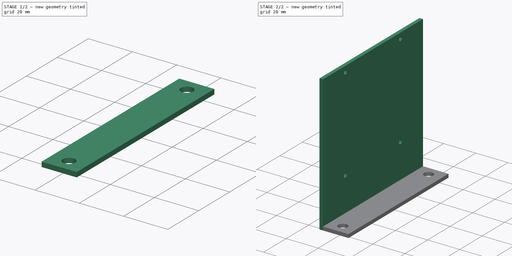
[diagram: build sequence overview — one tinted view per stage of 2, left to right]
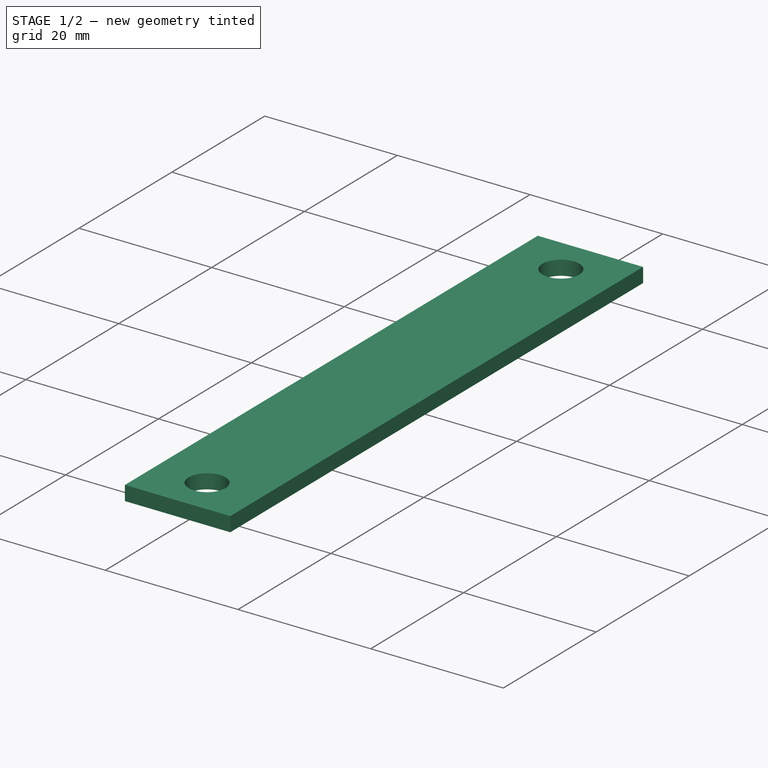
[diagram: stage 1 of 2 — iso view after this stage's code; geometry added in this stage tinted green]
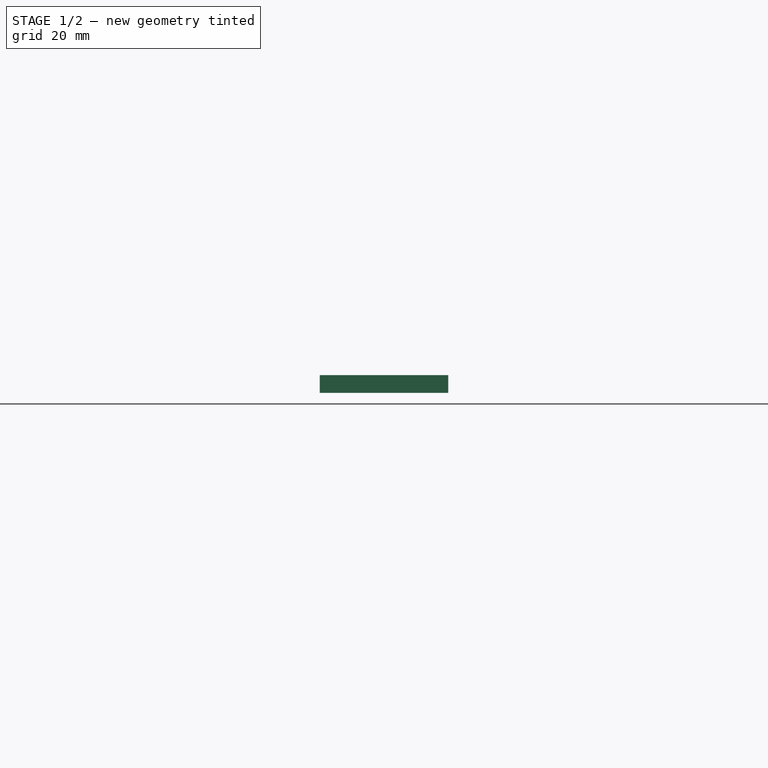
[diagram: stage 1 of 2 — front view after this stage's code; geometry added in this stage tinted green]
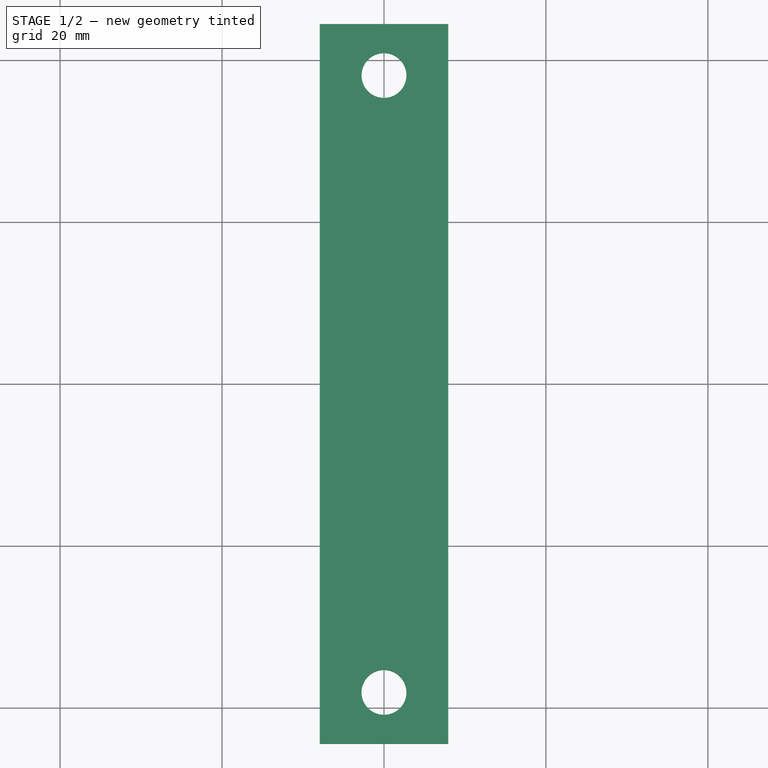
[diagram: stage 1 of 2 — top view after this stage's code; geometry added in this stage tinted green]
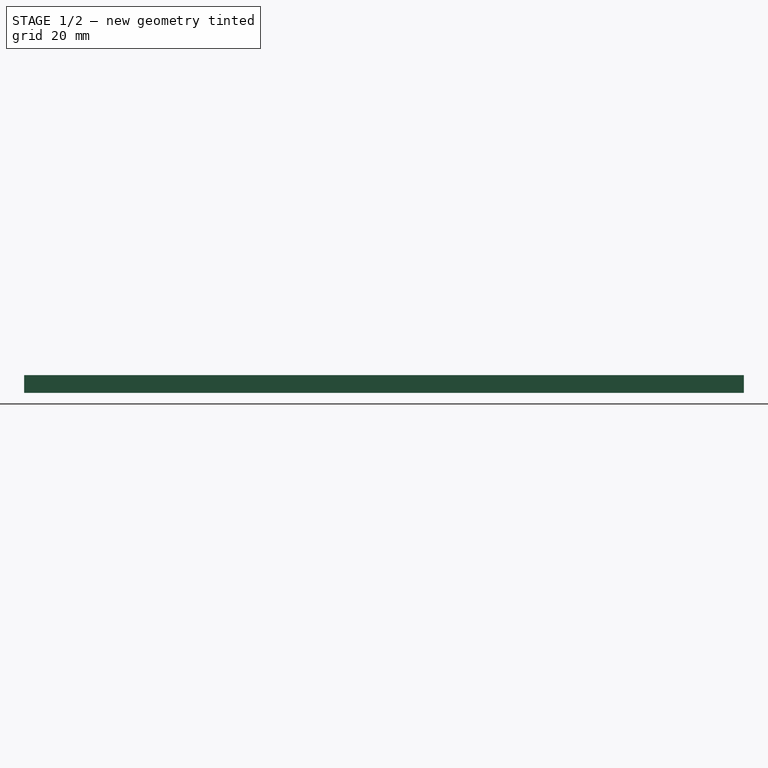
[diagram: stage 1 of 2 — right view after this stage's code; geometry added in this stage tinted green]
FCSTD DOCUMENT  (FreeCAD 0.19R14555 (Git shallow))
Label: 1U_v0_Pi_SideMount
License: All rights reserved
LicenseURL: http://en.wikipedia.org/wiki/All_rights_reserved
objects: Sketcher::SketchObject×2, PartDesign::Pad×2, PartDesign::Body×1
note: 7 computed .brp shape members not serialized (recipe doc carries the construction recipe); baked Part::Feature solids carry a one-line shape summary decoded from their .brp

FEATURE [Sketcher::SketchObject] Sketch
  FullyConstrained = true
  MapMode = 5
  Support = -> [XY_Plane001]
  expr: Constraints[9] = 44.45 * 2
  sketch-geometry (6):
    g0: LineSegment StartX=-7.94 StartY=44.45 StartZ=0 EndX=7.94 EndY=44.45 EndZ=0
    g1: LineSegment StartX=7.94 StartY=44.45 StartZ=0 EndX=7.94 EndY=-44.45 EndZ=0
    g2: LineSegment StartX=7.94 StartY=-44.45 StartZ=0 EndX=-7.94 EndY=-44.45 EndZ=0
    g3: LineSegment StartX=-7.94 StartY=-44.45 StartZ=0 EndX=-7.94 EndY=44.45 EndZ=0
    g4: Circle CenterX=-0.0025 CenterY=38.1 CenterZ=0 NormalX=0 NormalY=0 NormalZ=1 AngleXU=0 Radius=2.775
    g5: Circle CenterX=-0.0025 CenterY=-38.1 CenterZ=0 NormalX=0 NormalY=0 NormalZ=1 AngleXU=0 Radius=2.775
  constraints (16):
    c: Coincident(g0,g1)
    c: Coincident(g1,g2)
    c: Coincident(g2,g3)
    c: Coincident(g3,g0)
    c: Horizontal(g0)
    c: Horizontal(g2)
    c: Vertical(g1)
    c: Vertical(g3)
    c: DistanceX(g0,g0) = 15.88
    c: DistanceY(g3,g3) = 88.9
    c: Symmetric(g0,g2,g-1)
    c: Diameter(g4) = 5.55
    c: DistanceX(g0,g4) = 7.9375
    c: DistanceY(g4,g0) = 6.35
    c: Diameter(g5) = 5.55
    c: Symmetric(g4,g5,g-1)
FEATURE [PartDesign::Pad] Pad
  Direction = (1,1,1)
  Length = 2.2
  Length2 = 100
  Profile = -> Sketch
  Type = 0
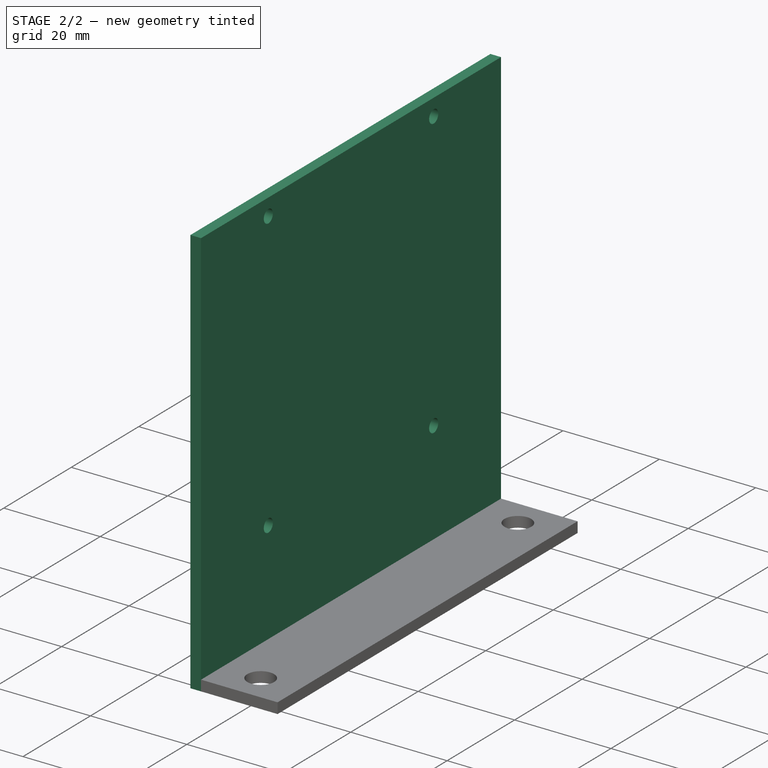
[diagram: stage 2 of 2 — iso view after this stage's code; geometry added in this stage tinted green]
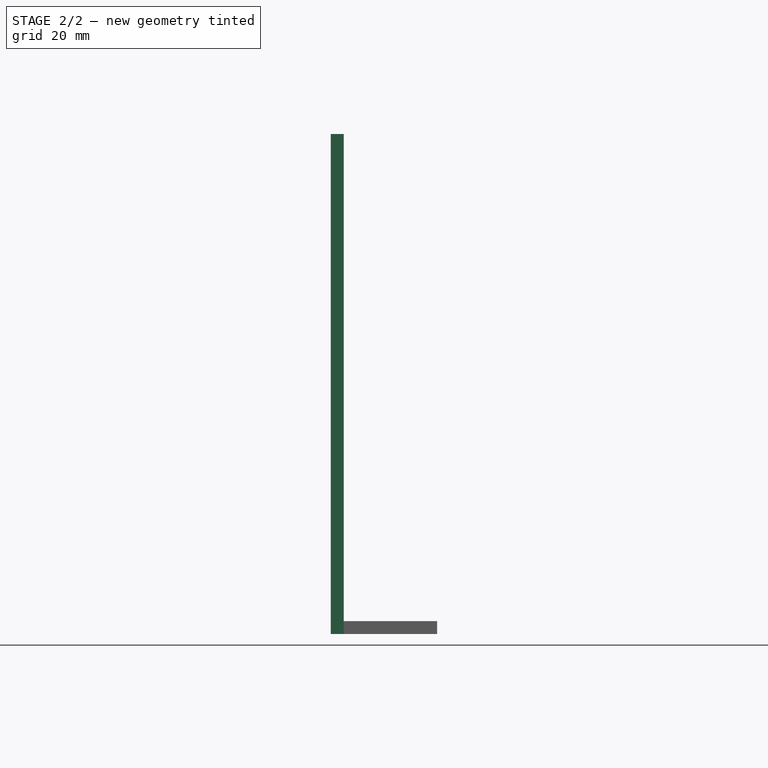
[diagram: stage 2 of 2 — front view after this stage's code; geometry added in this stage tinted green]
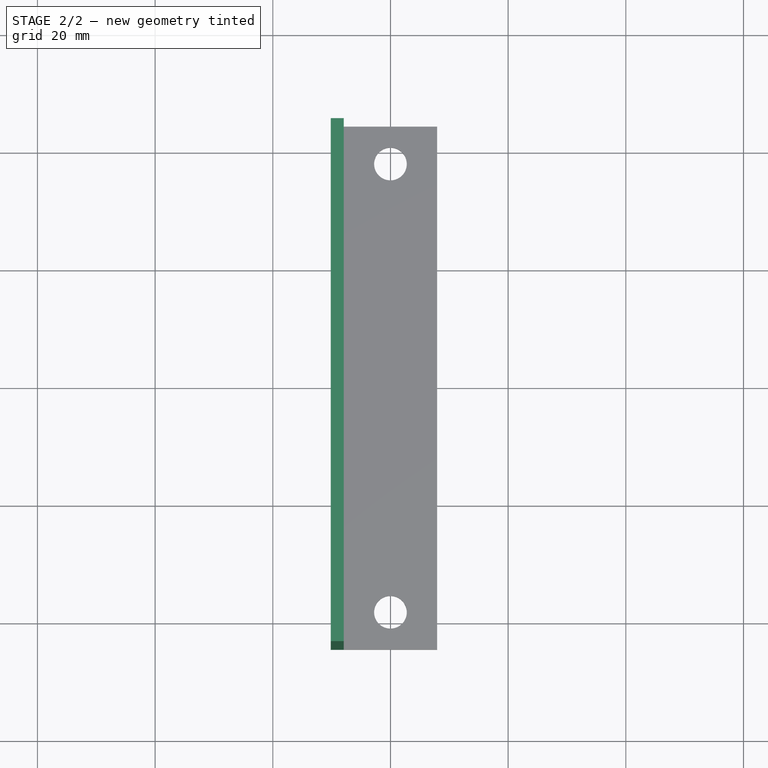
[diagram: stage 2 of 2 — top view after this stage's code; geometry added in this stage tinted green]
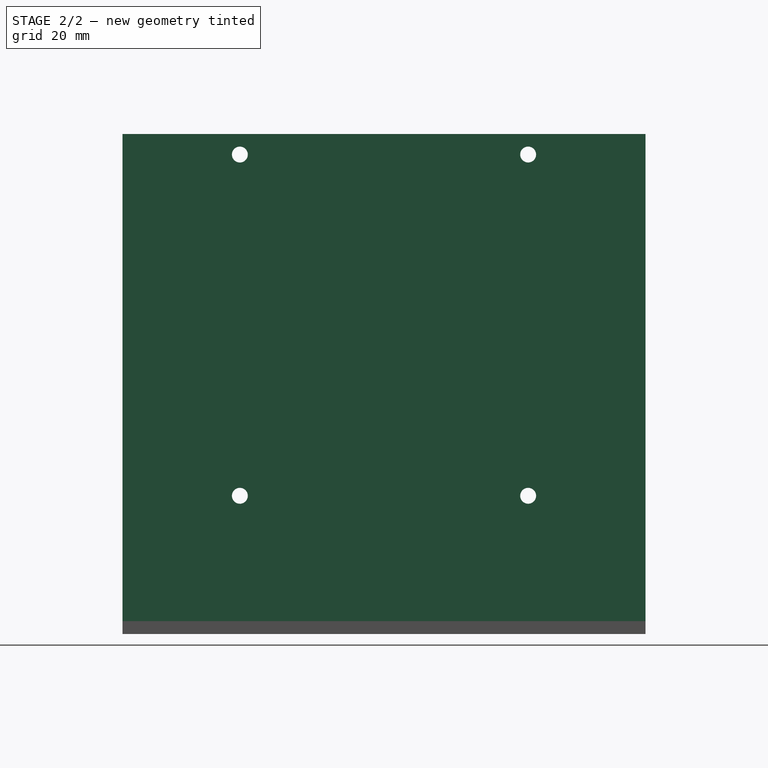
[diagram: stage 2 of 2 — right view after this stage's code; geometry added in this stage tinted green]
FEATURE [Sketcher::SketchObject] Sketch001
  FullyConstrained = true
  MapMode = 5
  Placement = pos=(-7.94,0,0) rot=(0.57735,-0.57735,-0.57735;2.0944rad)
  Support = -> [Pad]
  sketch-geometry (8):
    g0: LineSegment StartX=-44.45 StartY=0 StartZ=0 EndX=44.45 EndY=0 EndZ=0
    g1: LineSegment StartX=44.45 StartY=0 StartZ=0 EndX=44.45 EndY=85 EndZ=0
    g2: LineSegment StartX=44.45 StartY=85 StartZ=0 EndX=-44.45 EndY=85 EndZ=0
    g3: LineSegment StartX=-44.45 StartY=85 StartZ=0 EndX=-44.45 EndY=0 EndZ=0
    g4: Circle CenterX=-24.5 CenterY=23.5 CenterZ=0 NormalX=0 NormalY=0 NormalZ=1 AngleXU=0 Radius=1.35
    g5: Circle CenterX=24.5 CenterY=23.5 CenterZ=0 NormalX=0 NormalY=0 NormalZ=1 AngleXU=0 Radius=1.35
    g6: Circle CenterX=24.5 CenterY=81.5 CenterZ=0 NormalX=0 NormalY=0 NormalZ=1 AngleXU=0 Radius=1.35
    g7: Circle CenterX=-24.5 CenterY=81.5 CenterZ=0 NormalX=0 NormalY=0 NormalZ=1 AngleXU=0 Radius=1.35
  constraints (22):
    c: Coincident(g0,g1)
    c: Coincident(g1,g2)
    c: Coincident(g2,g3)
    c: Coincident(g3,g0)
    c: Horizontal(g0)
    c: Horizontal(g2)
    c: Vertical(g1)
    c: Vertical(g3)
    c: DistanceX(g0,g0) = 88.9
    c: Symmetric(g0,g0,g-1)
    c: DistanceY(g1,g1) = 85
    c: Diameter(g4) = 2.7
    c: Equal(g4,g5) = 2.7
    c: DistanceX(g4,g5) = 49
    c: Equal(g4,g7) = 2.7
    c: Equal(g7,g6) = 2.7
    c: DistanceX(g7,g6) = 49
    c: DistanceY(g4,g7) = 58
    c: Horizontal(g4,g5)
    c: Vertical(g4,g7)
    c: Symmetric(g7,g6,g-2)
    c: DistanceY(g6,g1) = 3.5
FEATURE [PartDesign::Pad] Pad001
  BaseFeature = -> Pad
  Direction = (1,1,1)
  Length = 2.2
  Length2 = 100
  Profile = -> Sketch001
  Type = 0
FEATURE [PartDesign::Body] Body001
  Group = -> [Sketch,Pad,Sketch001,Pad001]
  Origin = -> Origin001
  Tip = -> Pad001
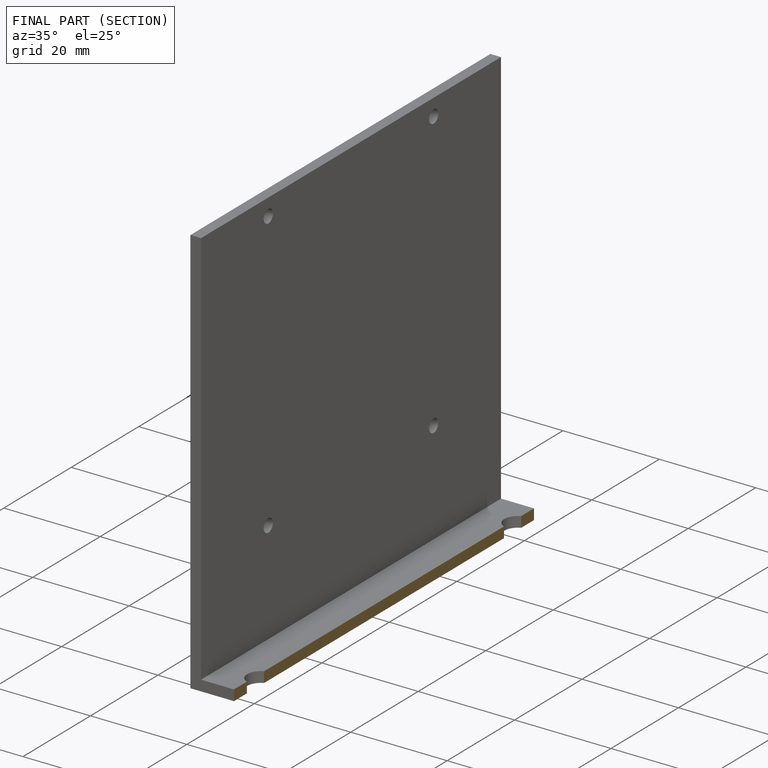
[diagram: finished part — half-section view (interior)]
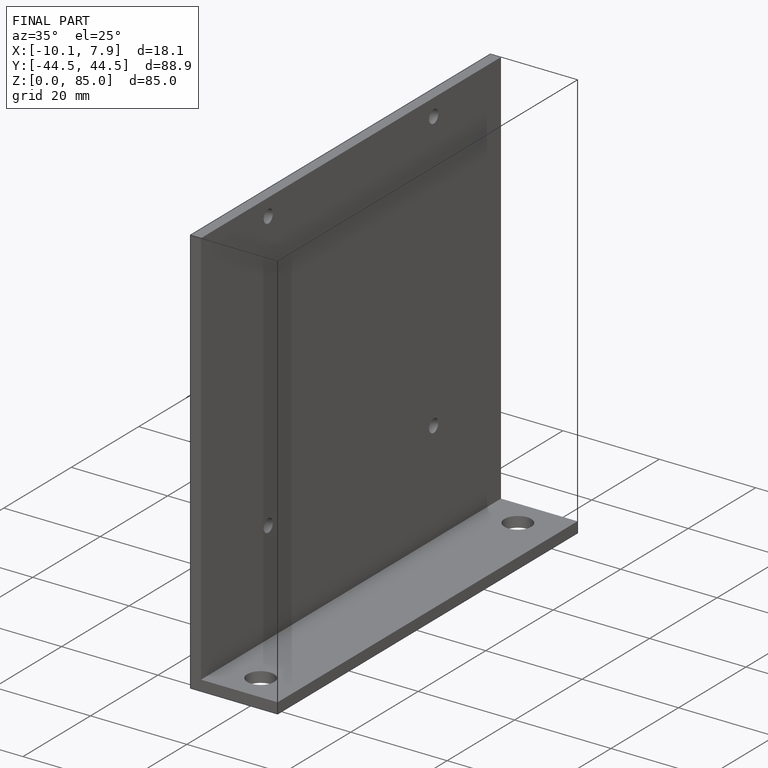
[diagram: finished part — iso view with bounding-box wireframe]
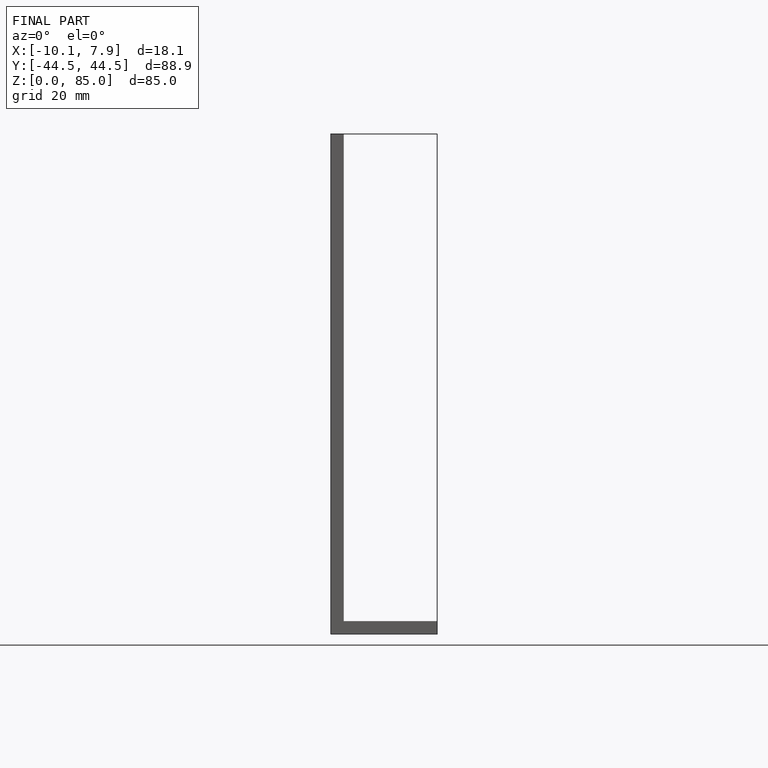
[diagram: finished part — front view with bounding-box wireframe]
